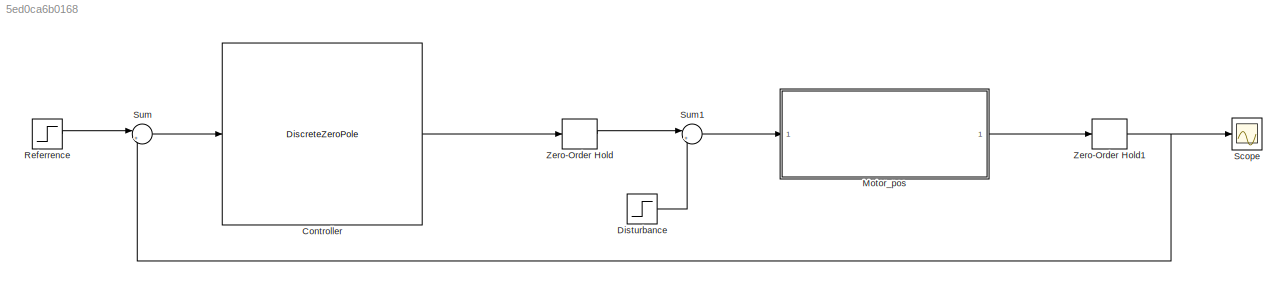
MODEL slx_5ed0ca6b0168
KIND model
CONFIG AbsTol = auto
CONFIG EnableMultiTasking = off
CONFIG FixedStep = auto
CONFIG MaxStep = auto
CONFIG MinStep = auto
CONFIG RelTol = 1e-3
CONFIG SampleTimeConstraint = Unconstrained
CONFIG SolverName = ode15s
CONFIG StartTime = 0.0
CONFIG StopTime = 0.08
BLOCK [DiscreteZeroPole] Controller
  Gain = 800
  Poles = [1 0.6 -0.98]
  SampleTime = 0.001
  Zeros = [0.95 0.8 0.8]
BLOCK [Step] Disturbance
  SampleTime = 0
  Time = 0.03
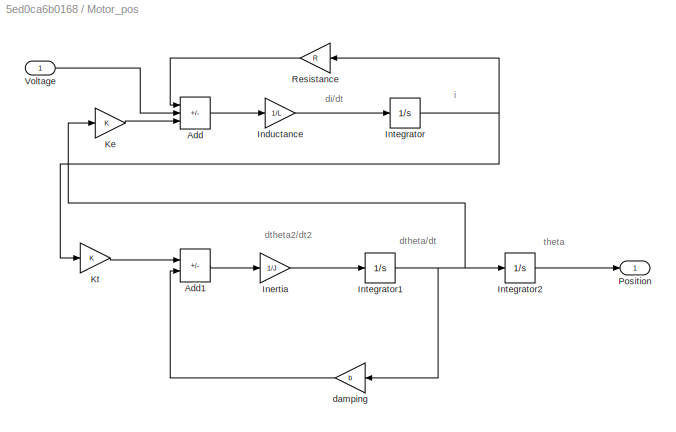
BLOCK [SubSystem] Motor_pos
  Ports = [1, 1]
  RequestExecContextInheritance = off
BLOCK [Sum] Motor_pos/Add
  IconShape = rectangular
  Inputs = -+-
  Ports = [3, 1]
BLOCK [Sum] Motor_pos/Add1
  IconShape = rectangular
  Inputs = +-
  Ports = [2, 1]
BLOCK [Gain] Motor_pos/Inductance
  Gain = 1/L
BLOCK [Gain] Motor_pos/Inertia
  Gain = 1/J
BLOCK [Integrator] Motor_pos/Integrator
  Ports = [1, 1]
BLOCK [Integrator] Motor_pos/Integrator1
  Ports = [1, 1]
BLOCK [Integrator] Motor_pos/Integrator2
  Ports = [1, 1]
BLOCK [Gain] Motor_pos/Ke
  Gain = K
BLOCK [Gain] Motor_pos/Kt
  Gain = K
BLOCK [Outport] Motor_pos/Position
BLOCK [Gain] Motor_pos/Resistance
  Gain = R
  NameLocation = top
BLOCK [Inport] Motor_pos/Voltage
BLOCK [Gain] Motor_pos/damping
  Gain = b
  NameLocation = top
BLOCK [Step] Referrence
  SampleTime = 0
  Time = 0
BLOCK [Scope] Scope
  Floating = off
  NumInputPorts = 1
  Ports = [1]
  ScopeSpecificationString = Simulink.scopes.TimeScopeBlockCfg('CurrentConfiguration', extmgr.ConfigurationSet(extmgr.Configuration('Core','General UI',true),extmgr.Configuration('Core','Source UI',true),extmgr.Configuration('Sources','WiredSimulink',true),extmgr.Configuration('Visuals','Time Domain',true,'SerializedDisplays',{struct('MinYLimReal','-0.13761','MaxYLimReal','1.23849','YLabelReal','','MinYLimMag','0.00000','MaxY...<+1418ch>
BLOCK [Sum] Sum
  Inputs = |+-
  Ports = [2, 1]
BLOCK [Sum] Sum1
  Inputs = |++
  Ports = [2, 1]
BLOCK [ZeroOrderHold] Zero-Order Hold
  SampleTime = 0.001
BLOCK [ZeroOrderHold] Zero-Order Hold1
  SampleTime = 0.001
ANNOTATION Motor_pos: di/dt
ANNOTATION Motor_pos: dtheta/dt
ANNOTATION Motor_pos: dtheta2/dt2
ANNOTATION Motor_pos: i
ANNOTATION Motor_pos: theta
LINE Controller:1 -> Zero-Order Hold:1
LINE Disturbance:1 -> Sum1:2
LINE Motor_pos/Add1:1 -> Motor_pos/Inertia:1
LINE Motor_pos/Add:1 -> Motor_pos/Inductance:1
LINE Motor_pos/Inductance:1 -> Motor_pos/Integrator:1
LINE Motor_pos/Inertia:1 -> Motor_pos/Integrator1:1
NET Motor_pos/Integrator1:1 -> Motor_pos/Integrator2:1, Motor_pos/Ke:1, Motor_pos/damping:1
LINE Motor_pos/Integrator2:1 -> Motor_pos/Position:1
NET Motor_pos/Integrator:1 -> Motor_pos/Kt:1, Motor_pos/Resistance:1
LINE Motor_pos/Ke:1 -> Motor_pos/Add:3
LINE Motor_pos/Kt:1 -> Motor_pos/Add1:1
LINE Motor_pos/Resistance:1 -> Motor_pos/Add:1
LINE Motor_pos/Voltage:1 -> Motor_pos/Add:2
LINE Motor_pos/damping:1 -> Motor_pos/Add1:2
LINE Motor_pos:1 -> Zero-Order Hold1:1
LINE Referrence:1 -> Sum:1
LINE Sum1:1 -> Motor_pos:1
LINE Sum:1 -> Controller:1
NET Zero-Order Hold1:1 -> Scope:1, Sum:2
LINE Zero-Order Hold:1 -> Sum1:1
note: NET lines group one-source signal fan-out (src -> all destinations, sorted); 1:1 wires keep LINE
